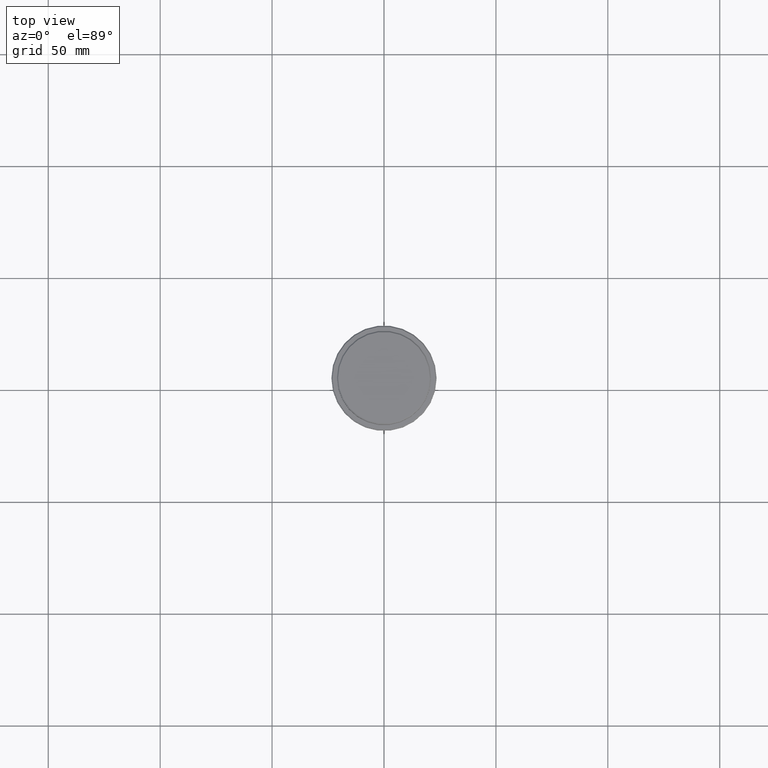
[diagram: clean part render]
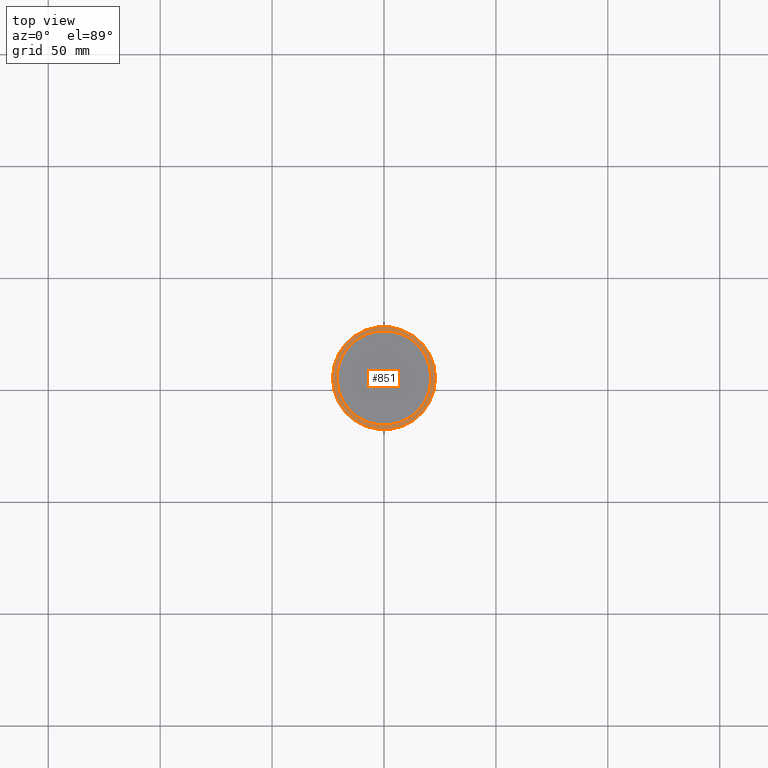
[diagram: same view with one face highlighted and labeled with its STEP entity id]
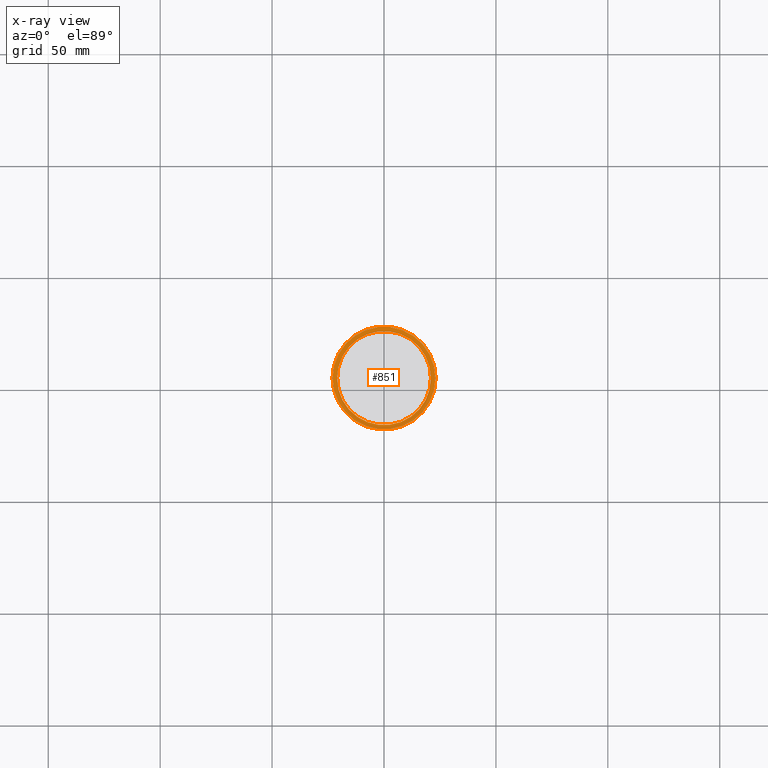
[diagram: x-ray of the same camera — body ghosted, the highlighted face saturated]
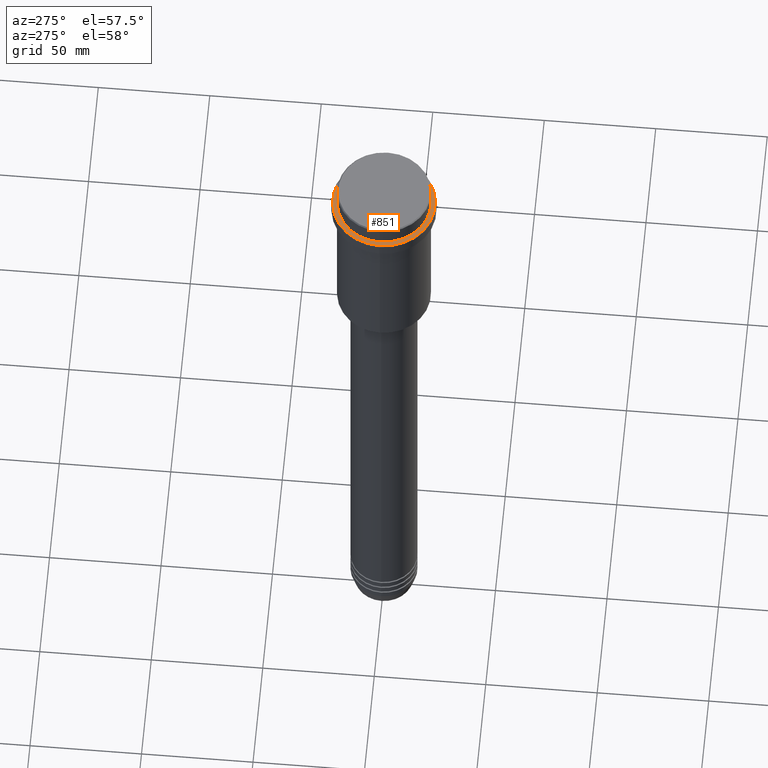
[diagram: same view with one face highlighted and labeled with its STEP entity id]
A machine part, top view. The second image highlights one B-rep face of the part: STEP entity #851.
The next image is the same camera in x-ray: the body ghosted, the highlighted face saturated — about 0% of this face is hidden behind the body in this view.
A second angle (auxiliary view) of the same face is appended — the face is thin or edge-on in the first view.
In plain terms, the highlighted planar face has unit normal (0, -0, 1).
Its self-contained STEP definition (entity closure, byte-faithful):
#21 = DIRECTION ( 'NONE',  ( 1.000000000000000000, 0.000000000000000000, 0.000000000000000000 ) ) ;
#46 = FACE_OUTER_BOUND ( 'NONE', #1316, .T. ) ;
#82 = EDGE_CURVE ( 'NONE', #116, #172, #139, .T. ) ;
#100 = CARTESIAN_POINT ( 'NONE',  ( 23.00000000000002487, 2.847303808017597717E-15, -9.000000000000001776 ) ) ;
#116 = VERTEX_POINT ( 'NONE', #342 ) ;
#136 = DIRECTION ( 'NONE',  ( 1.000000000000000000, 0.000000000000000000, 0.000000000000000000 ) ) ;
#139 = CIRCLE ( 'NONE', #1315, 20.99999999999999289 ) ;
#172 = VERTEX_POINT ( 'NONE', #180 ) ;
#180 = CARTESIAN_POINT ( 'NONE',  ( 20.99999999999999289, 0.000000000000000000, -9.000000000000001776 ) ) ;
#307 = DIRECTION ( 'NONE',  ( 0.000000000000000000, 0.000000000000000000, -1.000000000000000000 ) ) ;
#337 = DIRECTION ( 'NONE',  ( -0.000000000000000000, -0.000000000000000000, 1.000000000000000000 ) ) ;
#342 = CARTESIAN_POINT ( 'NONE',  ( -20.99999999999999289, 2.571758278209440872E-15, -9.000000000000001776 ) ) ;
#381 = EDGE_CURVE ( 'NONE', #172, #116, #609, .T. ) ;
#400 = ORIENTED_EDGE ( 'NONE', *, *, #82, .T. ) ;
#455 = EDGE_CURVE ( 'NONE', #1033, #1057, #572, .T. ) ;
#465 = AXIS2_PLACEMENT_3D ( 'NONE', #903, #337, #1214 ) ;
#473 = CARTESIAN_POINT ( 'NONE',  ( 0.000000000000000000, 0.000000000000000000, -9.000000000000001776 ) ) ;
#572 = CIRCLE ( 'NONE', #465, 23.00000000000002487 ) ;
#603 = FACE_BOUND ( 'NONE', #782, .T. ) ;
#609 = CIRCLE ( 'NONE', #1093, 20.99999999999999289 ) ;
#615 = DIRECTION ( 'NONE',  ( 0.000000000000000000, -0.000000000000000000, 1.000000000000000000 ) ) ;
#630 = CARTESIAN_POINT ( 'NONE',  ( -23.00000000000002487, 0.000000000000000000, -9.000000000000001776 ) ) ;
#748 = EDGE_CURVE ( 'NONE', #1057, #1033, #1174, .T. ) ;
#782 = EDGE_LOOP ( 'NONE', ( #1236, #400 ) ) ;
#812 = ORIENTED_EDGE ( 'NONE', *, *, #455, .T. ) ;
#846 = AXIS2_PLACEMENT_3D ( 'NONE', #1017, #1308, #21 ) ;
#851 = ADVANCED_FACE ( 'NONE', ( #46, #603 ), #1045, .T. ) ;
#886 = CARTESIAN_POINT ( 'NONE',  ( 0.000000000000000000, 0.000000000000000000, -9.000000000000001776 ) ) ;
#891 = DIRECTION ( 'NONE',  ( 1.000000000000000000, 0.000000000000000000, 0.000000000000000000 ) ) ;
#903 = CARTESIAN_POINT ( 'NONE',  ( 0.000000000000000000, 0.000000000000000000, -9.000000000000001776 ) ) ;
#1017 = CARTESIAN_POINT ( 'NONE',  ( 0.000000000000000000, 0.000000000000000000, -9.000000000000001776 ) ) ;
#1033 = VERTEX_POINT ( 'NONE', #630 ) ;
#1039 = ORIENTED_EDGE ( 'NONE', *, *, #748, .T. ) ;
#1045 = PLANE ( 'NONE',  #1319 ) ;
#1057 = VERTEX_POINT ( 'NONE', #100 ) ;
#1093 = AXIS2_PLACEMENT_3D ( 'NONE', #886, #307, #891 ) ;
#1141 = CARTESIAN_POINT ( 'NONE',  ( 0.000000000000000000, 20.49999999999999645, -9.000000000000001776 ) ) ;
#1174 = CIRCLE ( 'NONE', #846, 23.00000000000002487 ) ;
#1214 = DIRECTION ( 'NONE',  ( 1.000000000000000000, 0.000000000000000000, 0.000000000000000000 ) ) ;
#1228 = DIRECTION ( 'NONE',  ( 0.000000000000000000, 0.000000000000000000, -1.000000000000000000 ) ) ;
#1236 = ORIENTED_EDGE ( 'NONE', *, *, #381, .T. ) ;
#1308 = DIRECTION ( 'NONE',  ( -0.000000000000000000, -0.000000000000000000, 1.000000000000000000 ) ) ;
#1315 = AXIS2_PLACEMENT_3D ( 'NONE', #473, #1228, #136 ) ;
#1316 = EDGE_LOOP ( 'NONE', ( #812, #1039 ) ) ;
#1319 = AXIS2_PLACEMENT_3D ( 'NONE', #1141, #615, #1376 ) ;
#1376 = DIRECTION ( 'NONE',  ( 1.000000000000000000, 0.000000000000000000, 0.000000000000000000 ) ) ;